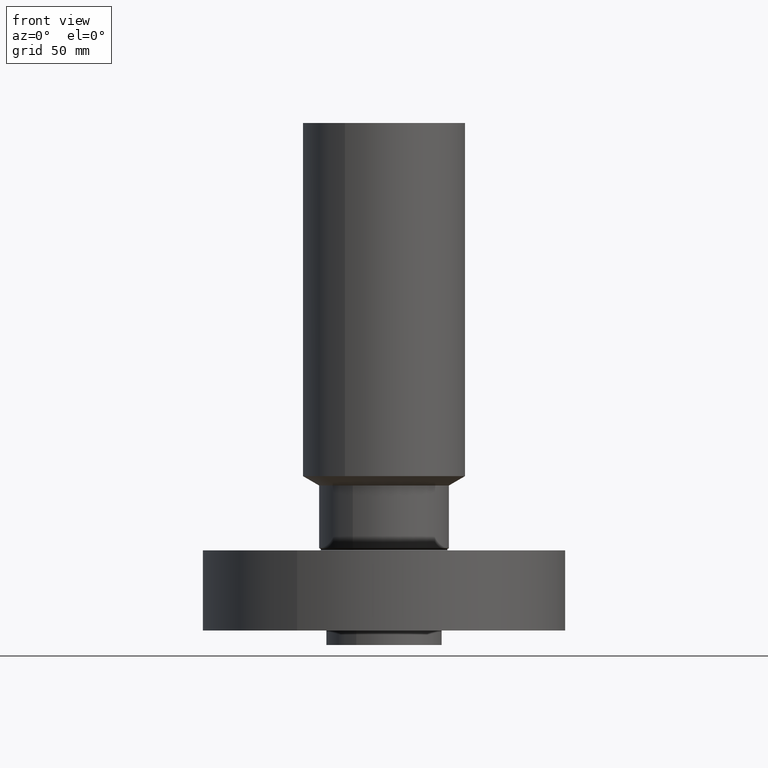
[diagram: clean part render]
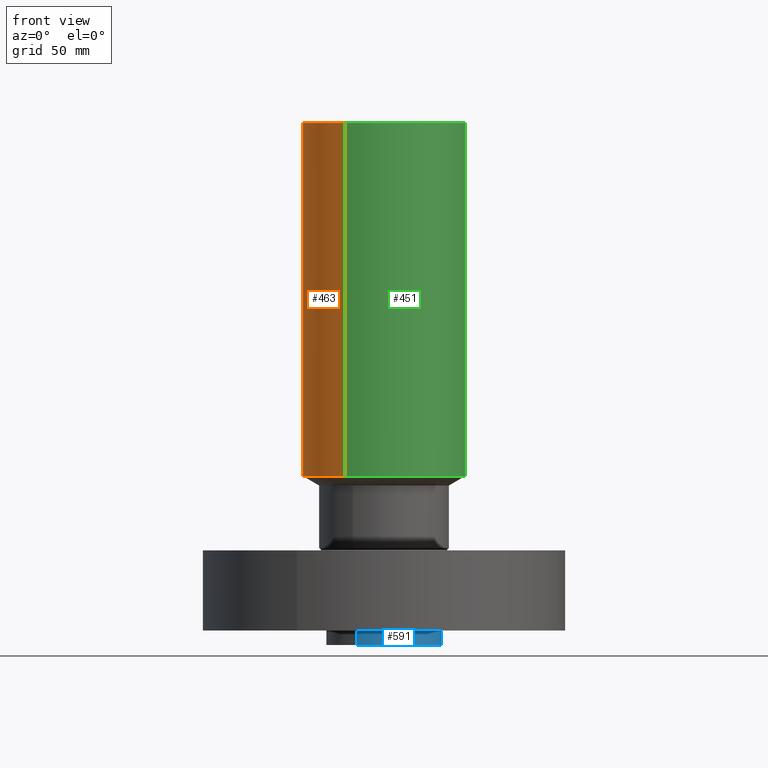
[diagram: same view with three faces highlighted in distinct colors, each labeled with its STEP entity id]
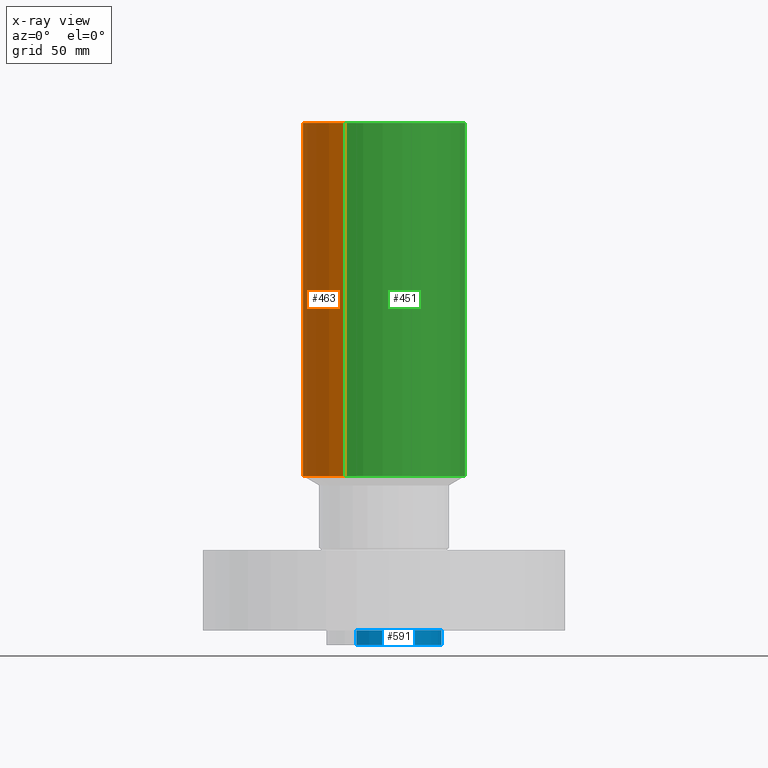
[diagram: x-ray of the same camera — body ghosted, the three highlighted faces saturated]
A machine part, front view with three faces highlighted in distinct colors.
The next image is the same camera in x-ray (body ghosted, the three faces saturated) — at least one of them is partly hidden behind the body in this view.
Their STEP definitions:

[orange] entity #463 — the highlighted cylindrical surface (partial cylindrical patch) has radius 35.687 mm, axis along (0, 0, -1).
#411=AXIS2_PLACEMENT_3D('Circle Axis2P3D',#409,#410,$) ;
#424=AXIS2_PLACEMENT_3D('Cylinder Axis2P3D',#421,#422,#423) ;
#454=AXIS2_PLACEMENT_3D('Circle Axis2P3D',#452,#453,$) ;
#387=CARTESIAN_POINT('Vertex',(0.673592881742,1.23300349946,2.66165807538)) ;
#394=CARTESIAN_POINT('Vertex',(-0.673592881742,-1.23300349946,2.66165807538)) ;
#409=CARTESIAN_POINT('Axis2P3D Location',(0.,0.,2.66165807538)) ;
#421=CARTESIAN_POINT('Axis2P3D Location',(0.,0.,4.25000000002)) ;
#426=CARTESIAN_POINT('Line Origine',(0.673592881742,1.23300349946,5.70582903771)) ;
#430=CARTESIAN_POINT('Vertex',(0.673592881742,1.23300349946,8.75000000003)) ;
#437=CARTESIAN_POINT('Vertex',(-0.673592881742,-1.23300349946,8.75000000003)) ;
#440=CARTESIAN_POINT('Line Origine',(-0.673592881742,-1.23300349946,5.70582903771)) ;
#452=CARTESIAN_POINT('Axis2P3D Location',(0.,0.,8.75000000003)) ;
#410=DIRECTION('Axis2P3D Direction',(-0.,0.,0.0393700787402)) ;
#422=DIRECTION('Axis2P3D Direction',(0.,0.,-0.0393700787402)) ;
#423=DIRECTION('Axis2P3D XDirection',(-0.0188750212049,-0.0345504945626,0.)) ;
#427=DIRECTION('Vector Direction',(0.,0.,-0.0393700787402)) ;
#441=DIRECTION('Vector Direction',(0.,0.,-0.0393700787402)) ;
#453=DIRECTION('Axis2P3D Direction',(0.,0.,-0.0393700787402)) ;
#428=VECTOR('Line Direction',#427,0.0393700787402) ;
#442=VECTOR('Line Direction',#441,0.0393700787402) ;
#458=ORIENTED_EDGE('',*,*,#413,.F.) ;
#459=ORIENTED_EDGE('',*,*,#444,.T.) ;
#460=ORIENTED_EDGE('',*,*,#456,.T.) ;
#461=ORIENTED_EDGE('',*,*,#432,.F.) ;
#463=ADVANCED_FACE('PartBody',(#462),#425,.T.) ;
#412=CIRCLE('generated circle',#411,1.40500000001) ;
#455=CIRCLE('generated circle',#454,1.40500000001) ;
#425=CYLINDRICAL_SURFACE('generated cylinder',#424,1.40500000001) ;
#413=EDGE_CURVE('',#395,#388,#412,.F.) ;
#432=EDGE_CURVE('',#388,#431,#429,.F.) ;
#444=EDGE_CURVE('',#395,#438,#443,.F.) ;
#456=EDGE_CURVE('',#438,#431,#455,.T.) ;
#457=EDGE_LOOP('',(#458,#459,#460,#461)) ;
#462=FACE_OUTER_BOUND('',#457,.T.) ;
#429=LINE('Line',#426,#428) ;
#443=LINE('Line',#440,#442) ;
#388=VERTEX_POINT('',#387) ;
#395=VERTEX_POINT('',#394) ;
#431=VERTEX_POINT('',#430) ;
#438=VERTEX_POINT('',#437) ;

[blue] entity #591 — the highlighted cylindrical surface (partial cylindrical patch) has radius 25.4 mm, axis along (0, 0, -1).
#109=AXIS2_PLACEMENT_3D('Circle Axis2P3D',#107,#108,$) ;
#551=AXIS2_PLACEMENT_3D('Circle Axis2P3D',#549,#550,$) ;
#566=AXIS2_PLACEMENT_3D('Cylinder Axis2P3D',#563,#564,#565) ;
#107=CARTESIAN_POINT('Axis2P3D Location',(0.,0.,0.)) ;
#111=CARTESIAN_POINT('Vertex',(0.479425538606,0.877582561894,0.)) ;
#113=CARTESIAN_POINT('Vertex',(-0.479425538606,-0.877582561894,0.)) ;
#544=CARTESIAN_POINT('Vertex',(-0.479425538606,-0.877582561894,-0.250000000001)) ;
#546=CARTESIAN_POINT('Vertex',(0.479425538606,0.877582561894,-0.250000000001)) ;
#549=CARTESIAN_POINT('Axis2P3D Location',(0.,0.,-0.250000000001)) ;
#563=CARTESIAN_POINT('Axis2P3D Location',(0.,0.,4.25000000002)) ;
#568=CARTESIAN_POINT('Line Origine',(-0.479425538606,-0.877582561894,-0.125000000001)) ;
#573=CARTESIAN_POINT('Line Origine',(0.479425538606,0.877582561894,-0.125000000001)) ;
#108=DIRECTION('Axis2P3D Direction',(0.,0.,-0.0393700787402)) ;
#550=DIRECTION('Axis2P3D Direction',(0.,0.,-0.0393700787402)) ;
#564=DIRECTION('Axis2P3D Direction',(0.,0.,-0.0393700787402)) ;
#565=DIRECTION('Axis2P3D XDirection',(0.0188750212049,0.0345504945626,0.)) ;
#569=DIRECTION('Vector Direction',(0.,0.,-0.0393700787402)) ;
#574=DIRECTION('Vector Direction',(0.,0.,-0.0393700787402)) ;
#570=VECTOR('Line Direction',#569,0.0393700787402) ;
#575=VECTOR('Line Direction',#574,0.0393700787402) ;
#586=ORIENTED_EDGE('',*,*,#553,.F.) ;
#587=ORIENTED_EDGE('',*,*,#577,.T.) ;
#588=ORIENTED_EDGE('',*,*,#115,.T.) ;
#589=ORIENTED_EDGE('',*,*,#572,.F.) ;
#591=ADVANCED_FACE('PartBody',(#590),#567,.T.) ;
#110=CIRCLE('generated circle',#109,1.) ;
#552=CIRCLE('generated circle',#551,1.) ;
#567=CYLINDRICAL_SURFACE('generated cylinder',#566,1.) ;
#115=EDGE_CURVE('',#112,#114,#110,.T.) ;
#553=EDGE_CURVE('',#547,#545,#552,.T.) ;
#572=EDGE_CURVE('',#545,#114,#571,.F.) ;
#577=EDGE_CURVE('',#547,#112,#576,.F.) ;
#585=EDGE_LOOP('',(#586,#587,#588,#589)) ;
#590=FACE_OUTER_BOUND('',#585,.T.) ;
#571=LINE('Line',#568,#570) ;
#576=LINE('Line',#573,#575) ;
#112=VERTEX_POINT('',#111) ;
#114=VERTEX_POINT('',#113) ;
#545=VERTEX_POINT('',#544) ;
#547=VERTEX_POINT('',#546) ;

[green] entity #451 — the highlighted cylindrical surface (partial cylindrical patch) has radius 35.687 mm, axis along (0, 0, -1).
#392=AXIS2_PLACEMENT_3D('Circle Axis2P3D',#390,#391,$) ;
#424=AXIS2_PLACEMENT_3D('Cylinder Axis2P3D',#421,#422,#423) ;
#435=AXIS2_PLACEMENT_3D('Circle Axis2P3D',#433,#434,$) ;
#387=CARTESIAN_POINT('Vertex',(0.673592881742,1.23300349946,2.66165807538)) ;
#390=CARTESIAN_POINT('Axis2P3D Location',(0.,0.,2.66165807538)) ;
#394=CARTESIAN_POINT('Vertex',(-0.673592881742,-1.23300349946,2.66165807538)) ;
#421=CARTESIAN_POINT('Axis2P3D Location',(0.,0.,4.25000000002)) ;
#426=CARTESIAN_POINT('Line Origine',(0.673592881742,1.23300349946,5.70582903771)) ;
#430=CARTESIAN_POINT('Vertex',(0.673592881742,1.23300349946,8.75000000003)) ;
#433=CARTESIAN_POINT('Axis2P3D Location',(0.,0.,8.75000000003)) ;
#437=CARTESIAN_POINT('Vertex',(-0.673592881742,-1.23300349946,8.75000000003)) ;
#440=CARTESIAN_POINT('Line Origine',(-0.673592881742,-1.23300349946,5.70582903771)) ;
#391=DIRECTION('Axis2P3D Direction',(-0.,0.,0.0393700787402)) ;
#422=DIRECTION('Axis2P3D Direction',(0.,0.,-0.0393700787402)) ;
#423=DIRECTION('Axis2P3D XDirection',(-0.0188750212049,-0.0345504945626,0.)) ;
#427=DIRECTION('Vector Direction',(0.,0.,-0.0393700787402)) ;
#434=DIRECTION('Axis2P3D Direction',(0.,0.,-0.0393700787402)) ;
#441=DIRECTION('Vector Direction',(0.,0.,-0.0393700787402)) ;
#428=VECTOR('Line Direction',#427,0.0393700787402) ;
#442=VECTOR('Line Direction',#441,0.0393700787402) ;
#446=ORIENTED_EDGE('',*,*,#396,.F.) ;
#447=ORIENTED_EDGE('',*,*,#432,.T.) ;
#448=ORIENTED_EDGE('',*,*,#439,.T.) ;
#449=ORIENTED_EDGE('',*,*,#444,.F.) ;
#451=ADVANCED_FACE('PartBody',(#450),#425,.T.) ;
#393=CIRCLE('generated circle',#392,1.40500000001) ;
#436=CIRCLE('generated circle',#435,1.40500000001) ;
#425=CYLINDRICAL_SURFACE('generated cylinder',#424,1.40500000001) ;
#396=EDGE_CURVE('',#388,#395,#393,.F.) ;
#432=EDGE_CURVE('',#388,#431,#429,.F.) ;
#439=EDGE_CURVE('',#431,#438,#436,.T.) ;
#444=EDGE_CURVE('',#395,#438,#443,.F.) ;
#445=EDGE_LOOP('',(#446,#447,#448,#449)) ;
#450=FACE_OUTER_BOUND('',#445,.T.) ;
#429=LINE('Line',#426,#428) ;
#443=LINE('Line',#440,#442) ;
#388=VERTEX_POINT('',#387) ;
#395=VERTEX_POINT('',#394) ;
#431=VERTEX_POINT('',#430) ;
#438=VERTEX_POINT('',#437) ;